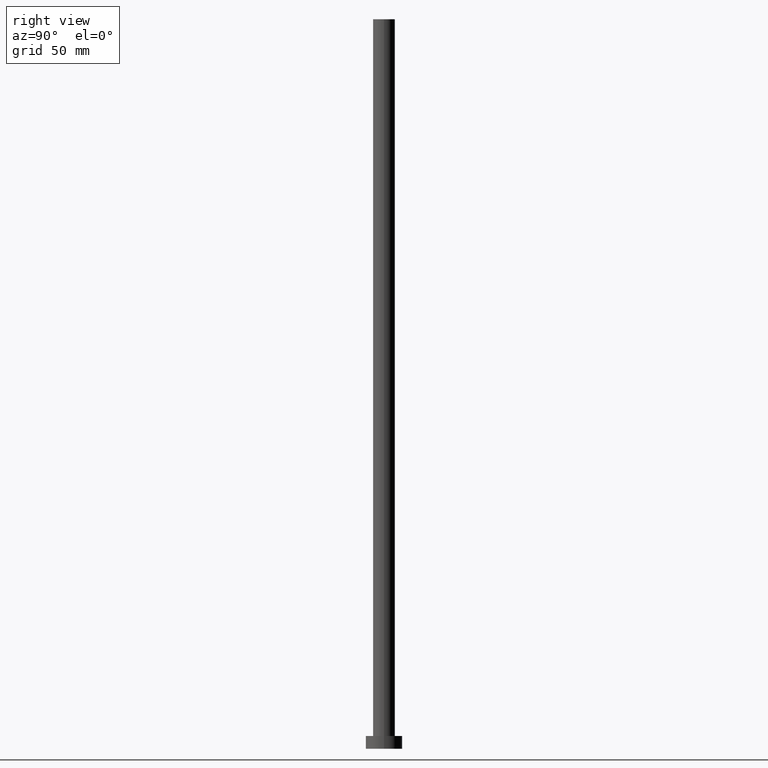
[diagram: clean part render]
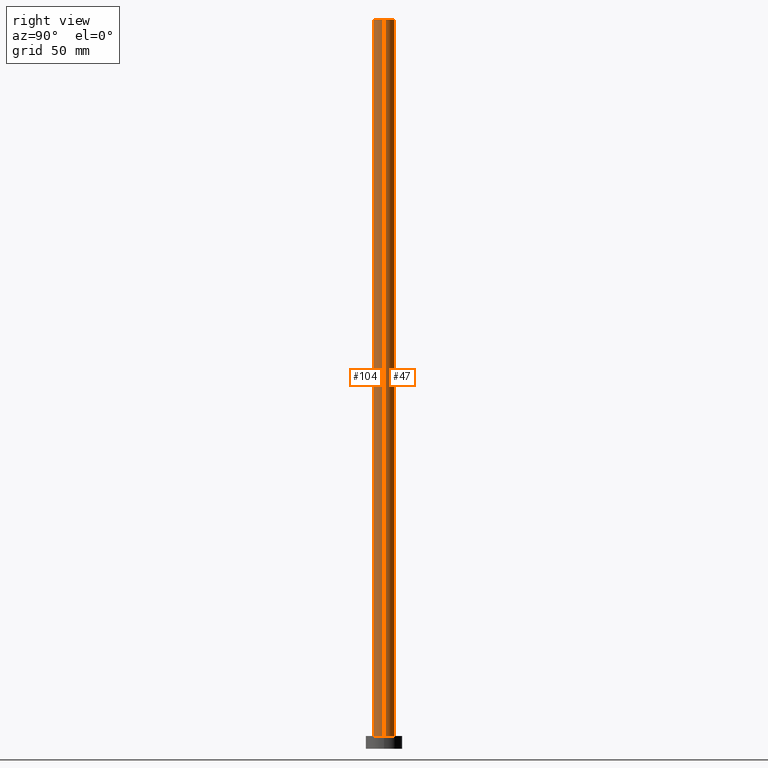
[diagram: same view with one multi-face feature highlighted, each face labeled with its STEP entity id]
A machine part, right view. The highlighted faces form ONE feature: a constant-radius fillet chain: 2 tangent blend faces with common blend radius 6 mm. The faces share edges in the B-rep.
Their STEP definitions:
[1] entity #47 (Cylinder):
#1 = CARTESIAN_POINT ( 'NONE',  ( -6.000000000000000888, 0.000000000000000000, 400.0000000000000000 ) ) ;
#3 = FACE_OUTER_BOUND ( 'NONE', #83, .T. ) ;
#7 = CIRCLE ( 'NONE', #73, 6.000000000000000888 ) ;
#10 = VECTOR ( 'NONE', #12, 1000.000000000000000 ) ;
#12 = DIRECTION ( 'NONE',  ( -0.000000000000000000, -0.000000000000000000, -1.000000000000000000 ) ) ;
#13 = EDGE_CURVE ( 'NONE', #39, #174, #123, .T. ) ;
#28 = CARTESIAN_POINT ( 'NONE',  ( 6.000000000000000888, 7.347880794884120722E-16, 7.000000000000000000 ) ) ;
#31 = DIRECTION ( 'NONE',  ( 0.000000000000000000, 0.000000000000000000, 1.000000000000000000 ) ) ;
#39 = VERTEX_POINT ( 'NONE', #241 ) ;
#42 = CYLINDRICAL_SURFACE ( 'NONE', #126, 6.000000000000000888 ) ;
#47 = ADVANCED_FACE ( 'NONE', ( #3 ), #42, .T. ) ;
#50 = CARTESIAN_POINT ( 'NONE',  ( 6.000000000000000888, 7.347880794884120722E-16, 400.0000000000000000 ) ) ;
#51 = EDGE_CURVE ( 'NONE', #216, #39, #239, .T. ) ;
#55 = ORIENTED_EDGE ( 'NONE', *, *, #51, .F. ) ;
#56 = ORIENTED_EDGE ( 'NONE', *, *, #13, .F. ) ;
#73 = AXIS2_PLACEMENT_3D ( 'NONE', #207, #31, #165 ) ;
#83 = EDGE_LOOP ( 'NONE', ( #55, #168, #234, #56 ) ) ;
#85 = DIRECTION ( 'NONE',  ( 0.000000000000000000, 0.000000000000000000, 1.000000000000000000 ) ) ;
#103 = DIRECTION ( 'NONE',  ( -0.000000000000000000, -0.000000000000000000, -1.000000000000000000 ) ) ;
#107 = LINE ( 'NONE', #50, #10 ) ;
#122 = CARTESIAN_POINT ( 'NONE',  ( 0.000000000000000000, 0.000000000000000000, 400.0000000000000000 ) ) ;
#123 = LINE ( 'NONE', #1, #252 ) ;
#126 = AXIS2_PLACEMENT_3D ( 'NONE', #122, #158, #243 ) ;
#128 = CARTESIAN_POINT ( 'NONE',  ( -6.000000000000000888, 0.000000000000000000, 7.000000000000000000 ) ) ;
#142 = AXIS2_PLACEMENT_3D ( 'NONE', #204, #85, #220 ) ;
#158 = DIRECTION ( 'NONE',  ( -0.000000000000000000, -0.000000000000000000, -1.000000000000000000 ) ) ;
#165 = DIRECTION ( 'NONE',  ( 1.000000000000000000, 0.000000000000000000, 0.000000000000000000 ) ) ;
#167 = EDGE_CURVE ( 'NONE', #216, #195, #107, .T. ) ;
#168 = ORIENTED_EDGE ( 'NONE', *, *, #167, .T. ) ;
#174 = VERTEX_POINT ( 'NONE', #128 ) ;
#182 = CARTESIAN_POINT ( 'NONE',  ( 6.000000000000000888, 7.347880794884120722E-16, 400.0000000000000000 ) ) ;
#195 = VERTEX_POINT ( 'NONE', #28 ) ;
#204 = CARTESIAN_POINT ( 'NONE',  ( 0.000000000000000000, 0.000000000000000000, 400.0000000000000000 ) ) ;
#207 = CARTESIAN_POINT ( 'NONE',  ( 0.000000000000000000, 0.000000000000000000, 7.000000000000000000 ) ) ;
#213 = EDGE_CURVE ( 'NONE', #195, #174, #7, .T. ) ;
#216 = VERTEX_POINT ( 'NONE', #182 ) ;
#220 = DIRECTION ( 'NONE',  ( 1.000000000000000000, 0.000000000000000000, 0.000000000000000000 ) ) ;
#234 = ORIENTED_EDGE ( 'NONE', *, *, #213, .T. ) ;
#239 = CIRCLE ( 'NONE', #142, 6.000000000000000888 ) ;
#241 = CARTESIAN_POINT ( 'NONE',  ( -6.000000000000000888, 0.000000000000000000, 400.0000000000000000 ) ) ;
#243 = DIRECTION ( 'NONE',  ( -1.000000000000000000, 0.000000000000000000, 0.000000000000000000 ) ) ;
#252 = VECTOR ( 'NONE', #103, 1000.000000000000000 ) ;
[2] entity #104 (Cylinder):
#1 = CARTESIAN_POINT ( 'NONE',  ( -6.000000000000000888, 0.000000000000000000, 400.0000000000000000 ) ) ;
#6 = DIRECTION ( 'NONE',  ( 0.000000000000000000, 0.000000000000000000, 1.000000000000000000 ) ) ;
#8 = DIRECTION ( 'NONE',  ( 0.000000000000000000, 0.000000000000000000, 1.000000000000000000 ) ) ;
#10 = VECTOR ( 'NONE', #12, 1000.000000000000000 ) ;
#12 = DIRECTION ( 'NONE',  ( -0.000000000000000000, -0.000000000000000000, -1.000000000000000000 ) ) ;
#13 = EDGE_CURVE ( 'NONE', #39, #174, #123, .T. ) ;
#16 = AXIS2_PLACEMENT_3D ( 'NONE', #180, #6, #89 ) ;
#18 = EDGE_CURVE ( 'NONE', #174, #195, #54, .T. ) ;
#23 = CYLINDRICAL_SURFACE ( 'NONE', #97, 6.000000000000000888 ) ;
#28 = CARTESIAN_POINT ( 'NONE',  ( 6.000000000000000888, 7.347880794884120722E-16, 7.000000000000000000 ) ) ;
#30 = AXIS2_PLACEMENT_3D ( 'NONE', #246, #8, #224 ) ;
#39 = VERTEX_POINT ( 'NONE', #241 ) ;
#41 = DIRECTION ( 'NONE',  ( -1.000000000000000000, 0.000000000000000000, 0.000000000000000000 ) ) ;
#50 = CARTESIAN_POINT ( 'NONE',  ( 6.000000000000000888, 7.347880794884120722E-16, 400.0000000000000000 ) ) ;
#54 = CIRCLE ( 'NONE', #30, 6.000000000000000888 ) ;
#62 = ORIENTED_EDGE ( 'NONE', *, *, #18, .T. ) ;
#65 = DIRECTION ( 'NONE',  ( -0.000000000000000000, -0.000000000000000000, -1.000000000000000000 ) ) ;
#87 = CARTESIAN_POINT ( 'NONE',  ( 0.000000000000000000, 0.000000000000000000, 400.0000000000000000 ) ) ;
#89 = DIRECTION ( 'NONE',  ( 1.000000000000000000, 0.000000000000000000, 0.000000000000000000 ) ) ;
#96 = ORIENTED_EDGE ( 'NONE', *, *, #13, .T. ) ;
#97 = AXIS2_PLACEMENT_3D ( 'NONE', #87, #65, #41 ) ;
#103 = DIRECTION ( 'NONE',  ( -0.000000000000000000, -0.000000000000000000, -1.000000000000000000 ) ) ;
#104 = ADVANCED_FACE ( 'NONE', ( #199 ), #23, .T. ) ;
#107 = LINE ( 'NONE', #50, #10 ) ;
#121 = EDGE_CURVE ( 'NONE', #39, #216, #208, .T. ) ;
#123 = LINE ( 'NONE', #1, #252 ) ;
#124 = ORIENTED_EDGE ( 'NONE', *, *, #121, .F. ) ;
#128 = CARTESIAN_POINT ( 'NONE',  ( -6.000000000000000888, 0.000000000000000000, 7.000000000000000000 ) ) ;
#143 = ORIENTED_EDGE ( 'NONE', *, *, #167, .F. ) ;
#167 = EDGE_CURVE ( 'NONE', #216, #195, #107, .T. ) ;
#174 = VERTEX_POINT ( 'NONE', #128 ) ;
#176 = EDGE_LOOP ( 'NONE', ( #143, #124, #96, #62 ) ) ;
#180 = CARTESIAN_POINT ( 'NONE',  ( 0.000000000000000000, 0.000000000000000000, 400.0000000000000000 ) ) ;
#182 = CARTESIAN_POINT ( 'NONE',  ( 6.000000000000000888, 7.347880794884120722E-16, 400.0000000000000000 ) ) ;
#195 = VERTEX_POINT ( 'NONE', #28 ) ;
#199 = FACE_OUTER_BOUND ( 'NONE', #176, .T. ) ;
#208 = CIRCLE ( 'NONE', #16, 6.000000000000000888 ) ;
#216 = VERTEX_POINT ( 'NONE', #182 ) ;
#224 = DIRECTION ( 'NONE',  ( 1.000000000000000000, 0.000000000000000000, 0.000000000000000000 ) ) ;
#241 = CARTESIAN_POINT ( 'NONE',  ( -6.000000000000000888, 0.000000000000000000, 400.0000000000000000 ) ) ;
#246 = CARTESIAN_POINT ( 'NONE',  ( 0.000000000000000000, 0.000000000000000000, 7.000000000000000000 ) ) ;
#252 = VECTOR ( 'NONE', #103, 1000.000000000000000 ) ;